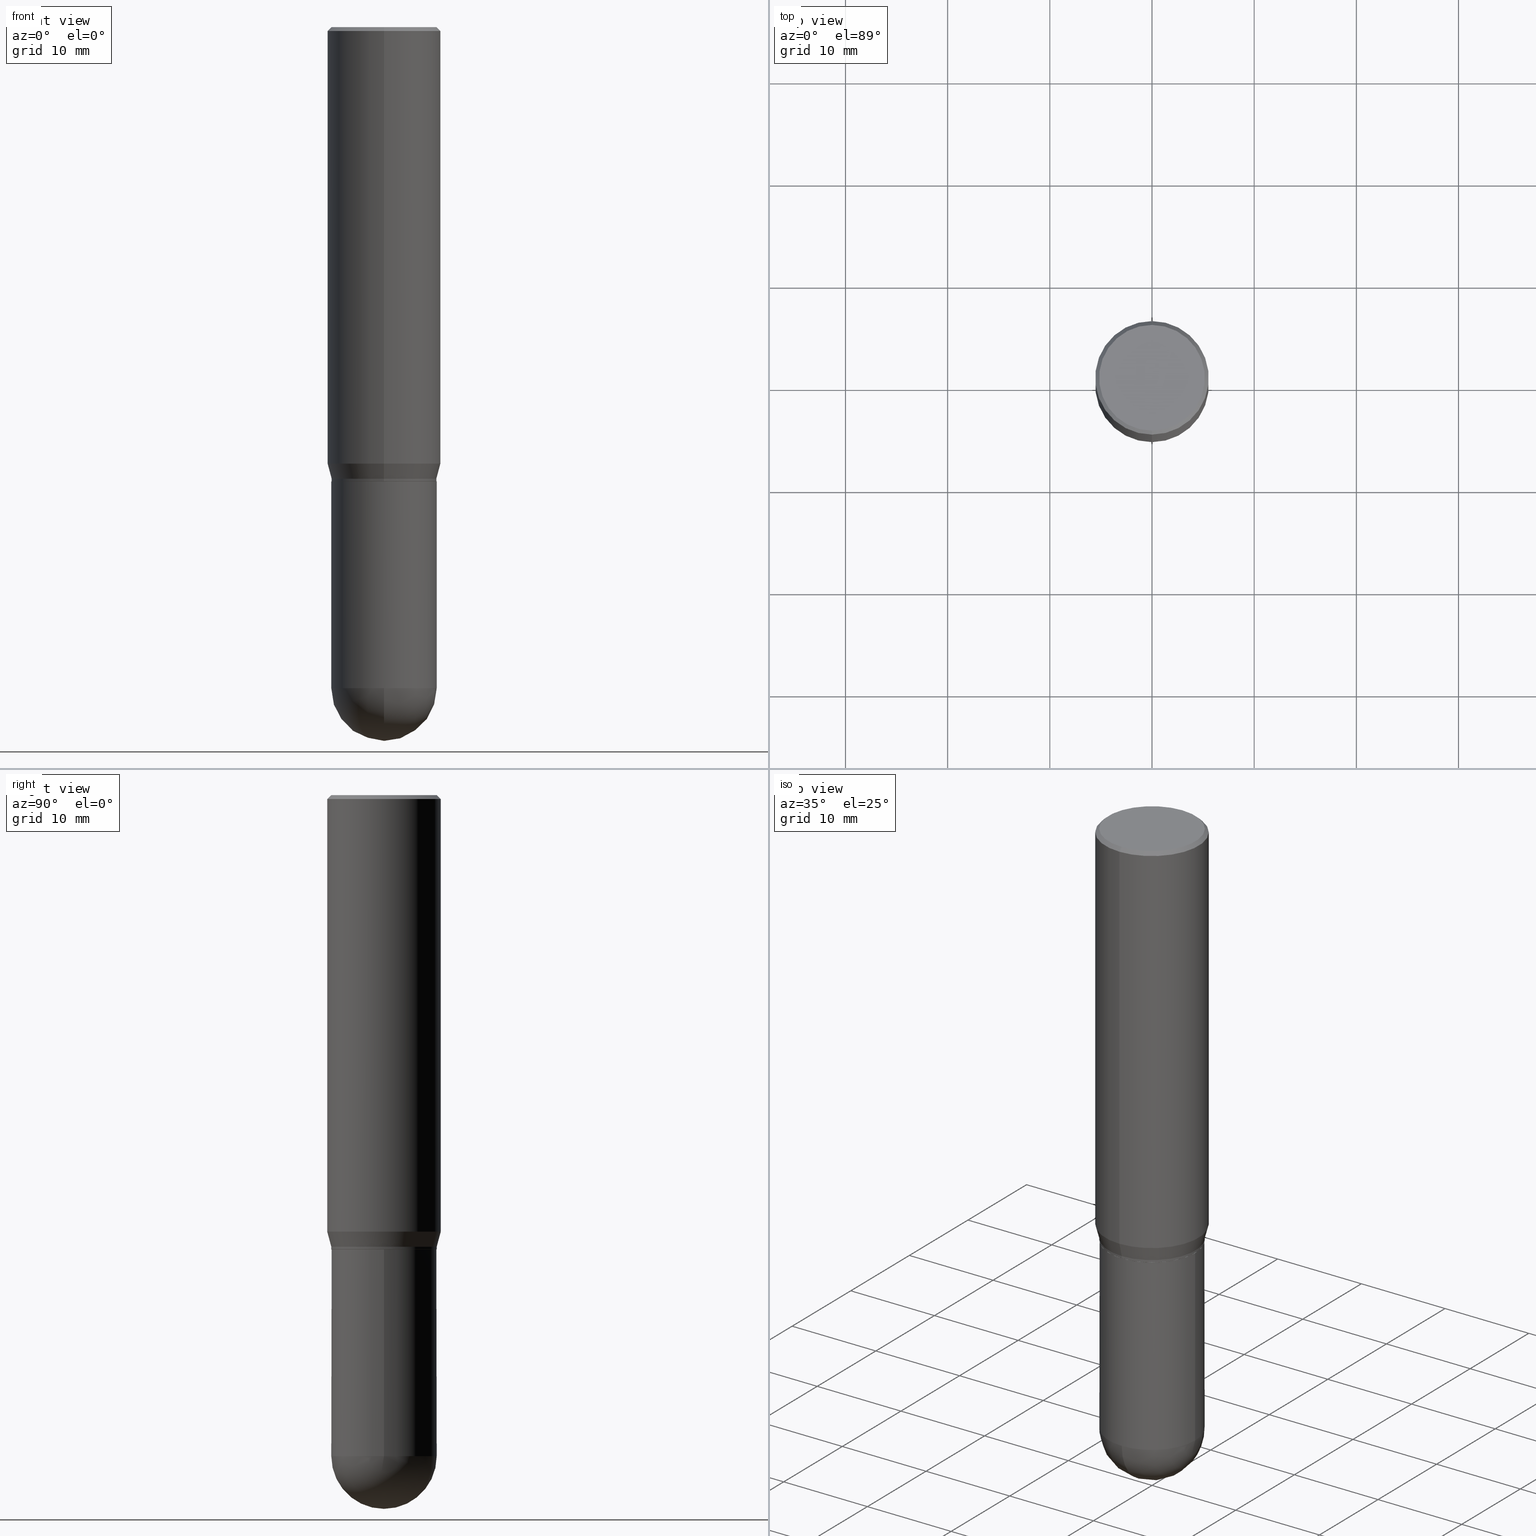
[diagram: canonical four-view strip — front | top / right | iso, engineering-drawing reading convention]
A machine part, canonical four-view strip (front | top / right | iso — engineering-drawing reading convention). The complete STEP part file that produces these views, byte-faithful:
ISO-10303-21;
HEADER;
FILE_DESCRIPTION (( 'STEP AP203' ),
    '1' );
FILE_NAME ('39552.STEP',
    '2024-03-08T12:54:17',
    ( '' ),
    ( '' ),
    'SwSTEP 2.0',
    'SolidWorks 2023',
    '' );
FILE_SCHEMA (( 'CONFIG_CONTROL_DESIGN' ));
ENDSEC;

DATA;
#1 = EDGE_LOOP ( 'NONE', ( #213, #378, #39, #416 ) ) ;
#2 = DIRECTION ( 'NONE',  ( 1.000000000000000000, -6.982962677686265922E-15, 4.883557194083112340E-29 ) ) ;
#3 = EDGE_LOOP ( 'NONE', ( #158, #72, #414, #426 ) ) ;
#4 = AXIS2_PLACEMENT_3D ( 'NONE', #265, #104, #502 ) ;
#5 = ORIENTED_EDGE ( 'NONE', *, *, #32, .T. ) ;
#6 = DIRECTION ( 'NONE',  ( -6.982962677686265922E-15, -1.000000000000000000, 4.045184590815789415E-15 ) ) ;
#7 = CARTESIAN_POINT ( 'NONE',  ( -1.527523085743870449E-15, -0.2187500000000000000, 7.637740546004402196E-16 ) ) ;
#8 = ORIENTED_EDGE ( 'NONE', *, *, #153, .F. ) ;
#9 = EDGE_CURVE ( 'NONE', #55, #154, #96, .T. ) ;
#10 = DIRECTION ( 'NONE',  ( 2.438088387897960049E-29, -3.491481338843145188E-15, -1.000000000000000000 ) ) ;
#11 = APPLICATION_PROTOCOL_DEFINITION ( 'international standard', 'config_control_design', 1994, #100 ) ;
#12 = VECTOR ( 'NONE', #291, 39.37007874015748143 ) ;
#13 = AXIS2_PLACEMENT_3D ( 'NONE', #53, #50, #367 ) ;
#14 = PRODUCT_DEFINITION_FORMATION_WITH_SPECIFIED_SOURCE ( 'ANY', '', #249, .NOT_KNOWN. ) ;
#15 = CALENDAR_DATE ( 2024, 8, 3 ) ;
#16 = MECHANICAL_CONTEXT ( 'NONE', #164, 'mechanical' ) ;
#17 = CARTESIAN_POINT ( 'NONE',  ( 6.228364502472924746E-29, -8.892453821899607499E-15, -2.546899999999999942 ) ) ;
#18 = AXIS2_PLACEMENT_3D ( 'NONE', #152, #46, #404 ) ;
#19 = PERSON_AND_ORGANIZATION ( #293, #227 ) ;
#20 = VERTEX_POINT ( 'NONE', #364 ) ;
#21 = DIRECTION ( 'NONE',  ( -2.445428866101404443E-29, 3.491538535316298316E-15, 1.000000000000000000 ) ) ;
#22 = VERTEX_POINT ( 'NONE', #142 ) ;
#23 = DIRECTION ( 'NONE',  ( -2.445468806185136597E-29, 3.491481338843145583E-15, 1.000000000000000000 ) ) ;
#24 = DIRECTION ( 'NONE',  ( 1.000000000000000000, -6.982962677686266711E-15, 4.876176775795935793E-29 ) ) ;
#25 = LINE ( 'NONE', #499, #253 ) ;
#26 = AXIS2_PLACEMENT_3D ( 'NONE', #274, #363, #358 ) ;
#27 = PRODUCT_RELATED_PRODUCT_CATEGORY ( 'detail', '', ( #249 ) ) ;
#28 = DIRECTION ( 'NONE',  ( 6.982962677686265133E-15, 1.000000000000000000, -3.492862791899308071E-15 ) ) ;
#29 = DIRECTION ( 'NONE',  ( -1.000000000000000000, 7.105427357601001070E-15, -4.926315508542082329E-29 ) ) ;
#30 = PLANE ( 'NONE',  #292 ) ;
#31 = VERTEX_POINT ( 'NONE', #327 ) ;
#32 = EDGE_CURVE ( 'NONE', #162, #347, #383, .T. ) ;
#33 = CARTESIAN_POINT ( 'NONE',  ( 6.716355003342508555E-29, -9.614009970063991023E-15, -2.750000000000000000 ) ) ;
#34 = CIRCLE ( 'NONE', #4, 0.2031000000000000583 ) ;
#35 = AXIS2_PLACEMENT_3D ( 'NONE', #508, #73, #235 ) ;
#36 = ORIENTED_EDGE ( 'NONE', *, *, #465, .T. ) ;
#37 = CARTESIAN_POINT ( 'NONE',  ( 1.443112296328806293E-15, 0.2030999999999939243, -1.749500000000000721 ) ) ;
#38 = DIRECTION ( 'NONE',  ( -2.445468806185136597E-29, 3.491481338843145583E-15, 1.000000000000000000 ) ) ;
#39 = ORIENTED_EDGE ( 'NONE', *, *, #199, .F. ) ;
#40 = FACE_OUTER_BOUND ( 'NONE', #78, .T. ) ;
#41 = EDGE_CURVE ( 'NONE', #31, #269, #481, .T. ) ;
#42 = CARTESIAN_POINT ( 'NONE',  ( 1.554312234475260177E-15, 0.2187499999999941436, -1.681593404861547958 ) ) ;
#43 =( NAMED_UNIT ( * ) PLANE_ANGLE_UNIT ( ) SI_UNIT ( $, .RADIAN. ) );
#44 = ADVANCED_FACE ( 'NONE', ( #450 ), #93, .T. ) ;
#45 = ORIENTED_EDGE ( 'NONE', *, *, #65, .T. ) ;
#46 = DIRECTION ( 'NONE',  ( -1.000000000000000000, 6.982962677686266711E-15, -4.883557194083112901E-29 ) ) ;
#47 = ORIENTED_EDGE ( 'NONE', *, *, #41, .T. ) ;
#48 = ORIENTED_EDGE ( 'NONE', *, *, #446, .F. ) ;
#49 = MANIFOLD_SOLID_BREP ( 'Body-Move/Copy2[2]', #214 ) ;
#50 = DIRECTION ( 'NONE',  ( 0.000000000000000000, 0.000000000000000000, 1.000000000000000000 ) ) ;
#51 = FACE_OUTER_BOUND ( 'NONE', #472, .T. ) ;
#52 = CONICAL_SURFACE ( 'NONE', #75, 0.2187500000000000000, 0.7853981633974485010 ) ;
#53 = CARTESIAN_POINT ( 'NONE',  ( 0.000000000000000000, 0.000000000000000000, 0.000000000000000000 ) ) ;
#54 = APPROVAL_STATUS ( 'not_yet_approved' ) ;
#55 = VERTEX_POINT ( 'NONE', #490 ) ;
#56 = PERSON_AND_ORGANIZATION ( #293, #227 ) ;
#57 = ORIENTED_EDGE ( 'NONE', *, *, #475, .T. ) ;
#58 = AXIS2_PLACEMENT_3D ( 'NONE', #503, #231, #222 ) ;
#59 = AXIS2_PLACEMENT_3D ( 'NONE', #430, #270, #232 ) ;
#60 = CARTESIAN_POINT ( 'NONE',  ( 4.279500515677457004E-29, -6.110192436803521757E-15, -1.750000000000000000 ) ) ;
#61 = CC_DESIGN_SECURITY_CLASSIFICATION ( #77, ( #14 ) ) ;
#62 = ORIENTED_EDGE ( 'NONE', *, *, #475, .F. ) ;
#63 = EDGE_CURVE ( 'NONE', #307, #347, #205, .T. ) ;
#64 = CYLINDRICAL_SURFACE ( 'NONE', #88, 0.2030999999999999472 ) ;
#65 = EDGE_CURVE ( 'NONE', #154, #20, #308, .T. ) ;
#66 = CARTESIAN_POINT ( 'NONE',  ( 4.278277801244407626E-29, -6.108446667535864278E-15, -1.749500000000000055 ) ) ;
#67 = CARTESIAN_POINT ( 'NONE',  ( 4.255046227016444789E-29, -6.075277051450358762E-15, -1.739999999999999991 ) ) ;
#68 = CLOSED_SHELL ( 'NONE', ( #44, #485, #130, #408, #79 ) ) ;
#69 = CIRCLE ( 'NONE', #360, 0.2030999999999999472 ) ;
#70 = LINE ( 'NONE', #99, #276 ) ;
#71 = CARTESIAN_POINT ( 'NONE',  ( 0.2031000000000000028, -1.418239719838080775E-15, 9.903515031641546145E-30 ) ) ;
#72 = ORIENTED_EDGE ( 'NONE', *, *, #234, .T. ) ;
#73 = DIRECTION ( 'NONE',  ( -2.445428866101404443E-29, 3.491538535316298316E-15, 1.000000000000000000 ) ) ;
#74 = DIRECTION ( 'NONE',  ( -1.000000000000000000, 6.982962677686266711E-15, -4.883557194083112901E-29 ) ) ;
#75 = AXIS2_PLACEMENT_3D ( 'NONE', #415, #224, #382 ) ;
#76 = AXIS2_PLACEMENT_3D ( 'NONE', #197, #2, #361 ) ;
#77 = SECURITY_CLASSIFICATION ( '', '', #486 ) ;
#78 = EDGE_LOOP ( 'NONE', ( #406, #284 ) ) ;
#79 = ADVANCED_FACE ( 'NONE', ( #306 ), #351, .T. ) ;
#80 = DIRECTION ( 'NONE',  ( -6.982962677686265133E-15, -1.000000000000000000, 3.491538535316298316E-15 ) ) ;
#81 = DIRECTION ( 'NONE',  ( -4.851104656540965064E-15, -0.7071067811865501263, -0.7071067811865449082 ) ) ;
#82 = DIRECTION ( 'NONE',  ( 6.982962677686266711E-15, 1.000000000000000000, -2.690150658458162309E-15 ) ) ;
#83 = ORIENTED_EDGE ( 'NONE', *, *, #392, .F. ) ;
#84 = EDGE_CURVE ( 'NONE', #510, #259, #462, .T. ) ;
#85 = FACE_OUTER_BOUND ( 'NONE', #238, .T. ) ;
#86 = ORIENTED_EDGE ( 'NONE', *, *, #183, .F. ) ;
#87 = ORIENTED_EDGE ( 'NONE', *, *, #63, .T. ) ;
#88 = AXIS2_PLACEMENT_3D ( 'NONE', #341, #459, #221 ) ;
#89 = LOCAL_TIME ( 7, 54, 17.00000000000000000, #373 ) ;
#90 = PERSON_AND_ORGANIZATION_ROLE ( 'design_supplier' ) ;
#91 = DATE_AND_TIME ( #15, #434 ) ;
#92 = CIRCLE ( 'NONE', #59, 0.2031000000000000028 ) ;
#93 = CYLINDRICAL_SURFACE ( 'NONE', #159, 0.2031000000000000028 ) ;
#94 = COORDINATED_UNIVERSAL_TIME_OFFSET ( 5, 0, .BEHIND. ) ;
#95 = ORIENTED_EDGE ( 'NONE', *, *, #294, .F. ) ;
#96 = LINE ( 'NONE', #338, #417 ) ;
#97 = ADVANCED_FACE ( 'NONE', ( #182 ), #346, .T. ) ;
#98 = AXIS2_PLACEMENT_3D ( 'NONE', #393, #151, #116 ) ;
#99 = CARTESIAN_POINT ( 'NONE',  ( -0.2031000000000000028, 1.443112296328763497E-15, -9.990357168307714203E-30 ) ) ;
#100 = APPLICATION_CONTEXT ( 'configuration controlled 3d designs of mechanical parts and assemblies' ) ;
#101 = ORIENTED_EDGE ( 'NONE', *, *, #386, .F. ) ;
#102 = CARTESIAN_POINT ( 'NONE',  ( 3.668143299152134304E-31, -5.237307802974486843E-17, -0.01500000000000011394 ) ) ;
#103 = DIRECTION ( 'NONE',  ( 1.000000000000000000, -6.982962677686269866E-15, 0.000000000000000000 ) ) ;
#104 = DIRECTION ( 'NONE',  ( -2.445468806185136597E-29, 3.491481338843145583E-15, 1.000000000000000000 ) ) ;
#105 = VECTOR ( 'NONE', #388, 39.37007874015748143 ) ;
#106 = EDGE_CURVE ( 'NONE', #320, #259, #457, .T. ) ;
#107 = CARTESIAN_POINT ( 'NONE',  ( 6.210996075139691695E-29, -8.917326398390289827E-15, -2.546899999999999942 ) ) ;
#108 = AXIS2_PLACEMENT_3D ( 'NONE', #67, #229, #385 ) ;
#109 = EDGE_LOOP ( 'NONE', ( #494, #190, #295, #86 ) ) ;
#110 = FACE_OUTER_BOUND ( 'NONE', #297, .T. ) ;
#111 = DIRECTION ( 'NONE',  ( -2.445428866101404443E-29, 3.491538535316298316E-15, 1.000000000000000000 ) ) ;
#112 = ORIENTED_EDGE ( 'NONE', *, *, #223, .F. ) ;
#113 = CARTESIAN_POINT ( 'NONE',  ( 1.441335939489405449E-15, 0.2025999999999938961, -1.750000000000000666 ) ) ;
#114 = DIRECTION ( 'NONE',  ( 1.000000000000000000, -6.982962677686262766E-15, 0.000000000000000000 ) ) ;
#115 = EDGE_CURVE ( 'NONE', #315, #456, #133, .T. ) ;
#116 = DIRECTION ( 'NONE',  ( -6.982962677686265922E-15, -1.000000000000000000, 4.045184590815789415E-15 ) ) ;
#117 = DIRECTION ( 'NONE',  ( -2.445428866101404443E-29, 3.491538535316298316E-15, 1.000000000000000000 ) ) ;
#118 = CIRCLE ( 'NONE', #286, 0.2037499999999999867 ) ;
#119 = ORIENTED_EDGE ( 'NONE', *, *, #115, .F. ) ;
#120 = CC_DESIGN_PERSON_AND_ORGANIZATION_ASSIGNMENT ( #129, #137, ( #14 ) ) ;
#121 = SPHERICAL_SURFACE ( 'NONE', #18, 0.2030999999999999472 ) ;
#122 = ORIENTED_EDGE ( 'NONE', *, *, #303, .F. ) ;
#123 = CARTESIAN_POINT ( 'NONE',  ( 4.279500515677457004E-29, -6.110192436803521757E-15, -1.750000000000000000 ) ) ;
#124 = ORIENTED_EDGE ( 'NONE', *, *, #9, .F. ) ;
#125 = CIRCLE ( 'NONE', #185, 0.2030999999999999472 ) ;
#126 = AXIS2_PLACEMENT_3D ( 'NONE', #512, #74, #82 ) ;
#127 = LINE ( 'NONE', #437, #368 ) ;
#128 = PERSON_AND_ORGANIZATION_ROLE ( 'design_owner' ) ;
#129 = PERSON_AND_ORGANIZATION ( #293, #227 ) ;
#130 = ADVANCED_FACE ( 'NONE', ( #471 ), #366, .F. ) ;
#131 = CALENDAR_DATE ( 2024, 8, 3 ) ;
#132 = CARTESIAN_POINT ( 'NONE',  ( -1.418239719838080381E-15, -0.2030999999999999472, 7.091314765227400575E-16 ) ) ;
#133 = CIRCLE ( 'NONE', #285, 0.2026000000000000023 ) ;
#134 = AXIS2_PLACEMENT_3D ( 'NONE', #156, #401, #163 ) ;
#135 = CC_DESIGN_PERSON_AND_ORGANIZATION_ASSIGNMENT ( #252, #128, ( #249 ) ) ;
#136 = APPROVAL_PERSON_ORGANIZATION ( #329, #250, #288 ) ;
#137 = PERSON_AND_ORGANIZATION_ROLE ( 'creator' ) ;
#138 = EDGE_LOOP ( 'NONE', ( #429, #362, #47, #48 ) ) ;
#139 = DATE_AND_TIME ( #258, #89 ) ;
#140 = VERTEX_POINT ( 'NONE', #277 ) ;
#141 = FACE_OUTER_BOUND ( 'NONE', #438, .T. ) ;
#142 = CARTESIAN_POINT ( 'NONE',  ( -0.2031000000000000028, -6.058160786108792588E-15, -1.750000000000000000 ) ) ;
#143 = CIRCLE ( 'NONE', #76, 0.2030999999999999472 ) ;
#144 = CC_DESIGN_APPROVAL ( #250, ( #405 ) ) ;
#145 = DIRECTION ( 'NONE',  ( -6.982962677686266711E-15, -1.000000000000000000, 4.035225987687243463E-15 ) ) ;
#146 = DIRECTION ( 'NONE',  ( -4.937700262164715281E-15, -0.7071067811865691111, 0.7071067811865257013 ) ) ;
#147 = CARTESIAN_POINT ( 'NONE',  ( -1.418239719838037782E-15, -0.2031000000000060257, -1.739999999999999103 ) ) ;
#148 = DIRECTION ( 'NONE',  ( -2.445468806185136597E-29, 3.491481338843145583E-15, 1.000000000000000000 ) ) ;
#149 = DIRECTION ( 'NONE',  ( -2.445428866101404443E-29, 3.491538535316297921E-15, 1.000000000000000000 ) ) ;
#150 = ORIENTED_EDGE ( 'NONE', *, *, #376, .F. ) ;
#151 = DIRECTION ( 'NONE',  ( -2.445428866101404443E-29, 3.491538535316298316E-15, 1.000000000000000000 ) ) ;
#152 = CARTESIAN_POINT ( 'NONE',  ( 6.210996075139691695E-29, -8.917326398390289827E-15, -2.546899999999999942 ) ) ;
#153 = EDGE_CURVE ( 'NONE', #140, #320, #127, .T. ) ;
#154 = VERTEX_POINT ( 'NONE', #42 ) ;
#155 = CARTESIAN_POINT ( 'NONE',  ( 0.2031000000000000028, -7.528332062813585446E-15, -1.750000000000000000 ) ) ;
#156 = CARTESIAN_POINT ( 'NONE',  ( 4.112217053294172949E-29, -5.871348173807832947E-15, -1.681593404861547070 ) ) ;
#157 = ADVANCED_FACE ( 'NONE', ( #51 ), #230, .T. ) ;
#158 = ORIENTED_EDGE ( 'NONE', *, *, #497, .T. ) ;
#159 = AXIS2_PLACEMENT_3D ( 'NONE', #171, #255, #331 ) ;
#160 = EDGE_LOOP ( 'NONE', ( #165, #5, #443, #272, #466 ) ) ;
#161 = DIRECTION ( 'NONE',  ( -2.445428866101404443E-29, 3.491538535316298316E-15, 1.000000000000000000 ) ) ;
#162 = VERTEX_POINT ( 'NONE', #345 ) ;
#163 = DIRECTION ( 'NONE',  ( -6.982962677686265133E-15, -1.000000000000000000, 3.746534391310989557E-15 ) ) ;
#164 = APPLICATION_CONTEXT ( 'configuration controlled 3d designs of mechanical parts and assemblies' ) ;
#165 = ORIENTED_EDGE ( 'NONE', *, *, #247, .F. ) ;
#166 = DIRECTION ( 'NONE',  ( -1.000000000000000000, 6.982962677686265922E-15, -4.876176775795935793E-29 ) ) ;
#167 = APPROVAL_ROLE ( '' ) ;
#168 = VECTOR ( 'NONE', #468, 39.37007874015748143 ) ;
#169 = EDGE_CURVE ( 'NONE', #31, #343, #422, .T. ) ;
#170 = APPROVAL_DATE_TIME ( #290, #271 ) ;
#171 = CARTESIAN_POINT ( 'NONE',  ( 0.000000000000000000, 0.000000000000000000, 0.000000000000000000 ) ) ;
#172 = AXIS2_PLACEMENT_3D ( 'NONE', #218, #23, #177 ) ;
#173 = DATE_AND_TIME ( #202, #207 ) ;
#174 = EDGE_LOOP ( 'NONE', ( #492, #374, #391, #353 ) ) ;
#175 = CARTESIAN_POINT ( 'NONE',  ( 0.000000000000000000, 0.000000000000000000, 0.000000000000000000 ) ) ;
#176 = VERTEX_POINT ( 'NONE', #461 ) ;
#177 = DIRECTION ( 'NONE',  ( 1.000000000000000000, -6.982962677686262766E-15, 0.000000000000000000 ) ) ;
#178 = VECTOR ( 'NONE', #239, 39.37007874015748143 ) ;
#179 = DIRECTION ( 'NONE',  ( -2.445428866101404162E-29, 3.491538535316297921E-15, 1.000000000000000000 ) ) ;
#180 = CARTESIAN_POINT ( 'NONE',  ( -1.414748238499194972E-15, -0.2026000000000061363, -1.749999999999999112 ) ) ;
#181 = DIRECTION ( 'NONE',  ( -2.445428866101404443E-29, 3.491538535316298316E-15, 1.000000000000000000 ) ) ;
#182 = FACE_OUTER_BOUND ( 'NONE', #3, .T. ) ;
#183 = EDGE_CURVE ( 'NONE', #347, #176, #488, .T. ) ;
#184 = CARTESIAN_POINT ( 'NONE',  ( -1.527523085743870054E-15, -0.2187500000000000555, -0.01499999999999934892 ) ) ;
#185 = AXIS2_PLACEMENT_3D ( 'NONE', #336, #498, #339 ) ;
#186 = DIRECTION ( 'NONE',  ( -7.105427357601001070E-15, -1.000000000000000000, 0.000000000000000000 ) ) ;
#187 = AXIS2_PLACEMENT_3D ( 'NONE', #354, #427, #194 ) ;
#188 = DIRECTION ( 'NONE',  ( -6.982962677686265133E-15, -1.000000000000000000, 3.491538535316298316E-15 ) ) ;
#189 = APPROVAL_PERSON_ORGANIZATION ( #370, #271, #167 ) ;
#190 = ORIENTED_EDGE ( 'NONE', *, *, #453, .T. ) ;
#191 = CARTESIAN_POINT ( 'NONE',  ( 2.741164584547628974E-45, -3.913784576302397328E-31, -1.120934091580303315E-16 ) ) ;
#192 = LINE ( 'NONE', #439, #349 ) ;
#193 = ORIENTED_EDGE ( 'NONE', *, *, #247, .T. ) ;
#194 = DIRECTION ( 'NONE',  ( 6.982962677686265922E-15, 1.000000000000000000, -3.491538535316297921E-15 ) ) ;
#195 = DIRECTION ( 'NONE',  ( -2.445428866101404443E-29, 3.491538535316298316E-15, 1.000000000000000000 ) ) ;
#196 = AXIS2_PLACEMENT_3D ( 'NONE', #175, #181, #387 ) ;
#197 = CARTESIAN_POINT ( 'NONE',  ( 6.210996075139691695E-29, -8.917326398390289827E-15, -2.546899999999999942 ) ) ;
#198 = AXIS2_PLACEMENT_3D ( 'NONE', #474, #195, #188 ) ;
#199 = EDGE_CURVE ( 'NONE', #269, #55, #125, .T. ) ;
#200 = EDGE_LOOP ( 'NONE', ( #478, #119 ) ) ;
#201 = ORIENTED_EDGE ( 'NONE', *, *, #209, .F. ) ;
#202 = CALENDAR_DATE ( 2024, 8, 3 ) ;
#203 = ADVANCED_FACE ( 'NONE', ( #110 ), #309, .T. ) ;
#204 = COORDINATED_UNIVERSAL_TIME_OFFSET ( 5, 0, .BEHIND. ) ;
#205 = CIRCLE ( 'NONE', #504, 0.2030999999999999472 ) ;
#206 = CIRCLE ( 'NONE', #433, 0.2031000000000000583 ) ;
#207 = LOCAL_TIME ( 7, 54, 17.00000000000000000, #289 ) ;
#208 = DATE_AND_TIME ( #413, #435 ) ;
#209 = EDGE_CURVE ( 'NONE', #335, #162, #34, .T. ) ;
#210 = APPROVAL_STATUS ( 'not_yet_approved' ) ;
#211 = EDGE_LOOP ( 'NONE', ( #122, #240, #322, #95 ) ) ;
#212 = DATE_TIME_ROLE ( 'classification_date' ) ;
#213 = ORIENTED_EDGE ( 'NONE', *, *, #169, .T. ) ;
#214 = CLOSED_SHELL ( 'NONE', ( #257, #479, #280, #97, #203, #300, #157, #215, #372, #246, #337, #379 ) ) ;
#215 = ADVANCED_FACE ( 'NONE', ( #141 ), #52, .T. ) ;
#216 = CIRCLE ( 'NONE', #505, 0.2031000000000000028 ) ;
#217 = APPROVAL_PERSON_ORGANIZATION ( #489, #487, #296 ) ;
#218 = CARTESIAN_POINT ( 'NONE',  ( 6.228364502472924746E-29, -8.892453821899607499E-15, -2.546899999999999942 ) ) ;
#219 = EDGE_LOOP ( 'NONE', ( #389, #193, #150, #396, #452 ) ) ;
#220 = MANIFOLD_SOLID_BREP ( 'Body-Move/Copy2[1]', #68 ) ;
#221 = DIRECTION ( 'NONE',  ( -6.982962677686266711E-15, -1.000000000000000000, 3.491538535316298710E-15 ) ) ;
#222 = DIRECTION ( 'NONE',  ( -6.982962677686265133E-15, -1.000000000000000000, 3.746534391310989557E-15 ) ) ;
#223 = EDGE_CURVE ( 'NONE', #456, #31, #305, .T. ) ;
#224 = DIRECTION ( 'NONE',  ( 2.445428866101404443E-29, -3.491538535316298316E-15, -1.000000000000000000 ) ) ;
#225 = EDGE_CURVE ( 'NONE', #343, #55, #25, .T. ) ;
#226 = AXIS2_PLACEMENT_3D ( 'NONE', #441, #317, #328 ) ;
#227 = ORGANIZATION ( 'UNSPECIFIED', 'UNSPECIFIED', '' ) ;
#228 = LOCAL_TIME ( 7, 54, 17.00000000000000000, #484 ) ;
#229 = DIRECTION ( 'NONE',  ( -2.445428866101404443E-29, 3.491538535316298316E-15, 1.000000000000000000 ) ) ;
#230 = CYLINDRICAL_SURFACE ( 'NONE', #196, 0.2187500000000000000 ) ;
#231 = DIRECTION ( 'NONE',  ( -2.445428866101404443E-29, 3.491538535316298316E-15, 1.000000000000000000 ) ) ;
#232 = DIRECTION ( 'NONE',  ( 1.000000000000000000, -6.982962677686269866E-15, 0.000000000000000000 ) ) ;
#233 = ORIENTED_EDGE ( 'NONE', *, *, #199, .T. ) ;
#234 = EDGE_CURVE ( 'NONE', #154, #259, #298, .T. ) ;
#235 = DIRECTION ( 'NONE',  ( -6.982962677686266711E-15, -1.000000000000000000, 3.491538535316298710E-15 ) ) ;
#236 = AXIS2_PLACEMENT_3D ( 'NONE', #17, #299, #419 ) ;
#237 = DIRECTION ( 'NONE',  ( -1.807323732225330928E-15, -0.2588190451025182970, 0.9659258262890689783 ) ) ;
#238 = EDGE_LOOP ( 'NONE', ( #440, #412, #506, #112 ) ) ;
#239 = DIRECTION ( 'NONE',  ( -2.445468806185136877E-29, 3.491481338843145188E-15, 1.000000000000000000 ) ) ;
#240 = ORIENTED_EDGE ( 'NONE', *, *, #115, .T. ) ;
#241 = FACE_OUTER_BOUND ( 'NONE', #312, .T. ) ;
#242 = EDGE_LOOP ( 'NONE', ( #399, #262 ) ) ;
#243 = CIRCLE ( 'NONE', #384, 0.2187500000000000000 ) ;
#244 = ORIENTED_EDGE ( 'NONE', *, *, #234, .F. ) ;
#245 = DIRECTION ( 'NONE',  ( -2.445428866101404443E-29, 3.491538535316298316E-15, 1.000000000000000000 ) ) ;
#246 = ADVANCED_FACE ( 'NONE', ( #377 ), #30, .F. ) ;
#247 = EDGE_CURVE ( 'NONE', #162, #22, #70, .T. ) ;
#248 = PERSON_AND_ORGANIZATION_ROLE ( 'classification_officer' ) ;
#249 = PRODUCT ( '39552', '39552', '', ( #16 ) ) ;
#250 = APPROVAL ( #54, 'UNSPECIFIED' ) ;
#251 = UNCERTAINTY_MEASURE_WITH_UNIT (LENGTH_MEASURE( 1.000000000000000082E-05 ), #278, 'distance_accuracy_value', 'NONE');
#252 = PERSON_AND_ORGANIZATION ( #293, #227 ) ;
#253 = VECTOR ( 'NONE', #179, 39.37007874015748143 ) ;
#254 = CC_DESIGN_APPROVAL ( #271, ( #14 ) ) ;
#255 = DIRECTION ( 'NONE',  ( -2.445468806185136597E-29, 3.491481338843145583E-15, 1.000000000000000000 ) ) ;
#256 = DIRECTION ( 'NONE',  ( 1.839019923739601104E-15, 0.2588190451025250693, 0.9659258262890670910 ) ) ;
#257 = ADVANCED_FACE ( 'NONE', ( #342 ), #64, .T. ) ;
#258 = CALENDAR_DATE ( 2024, 8, 3 ) ;
#259 = VERTEX_POINT ( 'NONE', #380 ) ;
#260 = CIRCLE ( 'NONE', #198, 0.2037499999999999867 ) ;
#261 = DIRECTION ( 'NONE',  ( -2.445468806185136877E-29, 3.491481338843145188E-15, 1.000000000000000000 ) ) ;
#262 = ORIENTED_EDGE ( 'NONE', *, *, #287, .T. ) ;
#263 = DIRECTION ( 'NONE',  ( 2.445428866101404443E-29, -3.491538535316298316E-15, -1.000000000000000000 ) ) ;
#264 = CC_DESIGN_PERSON_AND_ORGANIZATION_ASSIGNMENT ( #19, #491, ( #405 ) ) ;
#265 = CARTESIAN_POINT ( 'NONE',  ( 6.228364502472924746E-29, -8.892453821899607499E-15, -2.546899999999999942 ) ) ;
#266 = CONICAL_SURFACE ( 'NONE', #449, 0.2026000000000000023, 0.7853981633974824739 ) ;
#267 = CARTESIAN_POINT ( 'NONE',  ( 4.279570410823988484E-29, -6.110092342975504671E-15, -1.750000000000000000 ) ) ;
#268 = CARTESIAN_POINT ( 'NONE',  ( 1.527523085743871040E-15, 0.2187499999999999167, -0.01500000000000087721 ) ) ;
#269 = VERTEX_POINT ( 'NONE', #147 ) ;
#270 = DIRECTION ( 'NONE',  ( -2.445468806185136597E-29, 3.491481338843145583E-15, 1.000000000000000000 ) ) ;
#271 = APPROVAL ( #210, 'UNSPECIFIED' ) ;
#272 = ORIENTED_EDGE ( 'NONE', *, *, #333, .T. ) ;
#273 = CARTESIAN_POINT ( 'NONE',  ( -1.443112296328700980E-15, -0.2031000000000088845, -2.546899999999999498 ) ) ;
#274 = CARTESIAN_POINT ( 'NONE',  ( 4.279500515677457004E-29, -6.110192436803521757E-15, -1.750000000000000000 ) ) ;
#275 = CARTESIAN_POINT ( 'NONE',  ( 1.439559582650005591E-15, 0.2025999999999938961, -1.750000000000000666 ) ) ;
#276 = VECTOR ( 'NONE', #261, 39.37007874015748143 ) ;
#277 = CARTESIAN_POINT ( 'NONE',  ( -1.449280202029235538E-15, -0.2037499999999999867, 5.993075674126653216E-16 ) ) ;
#278 =( CONVERSION_BASED_UNIT ( 'INCH', #442 ) LENGTH_UNIT ( ) NAMED_UNIT ( #454 ) );
#279 = ORIENTED_EDGE ( 'NONE', *, *, #9, .T. ) ;
#280 = ADVANCED_FACE ( 'NONE', ( #495 ), #444, .T. ) ;
#281 = CARTESIAN_POINT ( 'NONE',  ( 6.228364502472924746E-29, -8.892453821899607499E-15, -2.546899999999999942 ) ) ;
#282 = ORIENTED_EDGE ( 'NONE', *, *, #65, .F. ) ;
#283 = FACE_OUTER_BOUND ( 'NONE', #109, .T. ) ;
#284 = ORIENTED_EDGE ( 'NONE', *, *, #319, .T. ) ;
#285 = AXIS2_PLACEMENT_3D ( 'NONE', #325, #117, #6 ) ;
#286 = AXIS2_PLACEMENT_3D ( 'NONE', #191, #390, #80 ) ;
#287 = EDGE_CURVE ( 'NONE', #22, #324, #216, .T. ) ;
#288 = APPROVAL_ROLE ( '' ) ;
#289 = COORDINATED_UNIVERSAL_TIME_OFFSET ( 5, 0, .BEHIND. ) ;
#290 = DATE_AND_TIME ( #131, #228 ) ;
#291 = DIRECTION ( 'NONE',  ( -2.445428866101404162E-29, 3.491538535316297921E-15, 1.000000000000000000 ) ) ;
#292 = AXIS2_PLACEMENT_3D ( 'NONE', #60, #149, #310 ) ;
#293 = PERSON ( 'UNSPECIFIED', 'UNSPECIFIED', 'UNSPECIFIED', ('UNSPECIFIED'), ('UNSPECIFIED'), ('UNSPECIFIED') ) ;
#294 = EDGE_CURVE ( 'NONE', #343, #31, #496, .T. ) ;
#295 = ORIENTED_EDGE ( 'NONE', *, *, #425, .F. ) ;
#296 = APPROVAL_ROLE ( '' ) ;
#297 = EDGE_LOOP ( 'NONE', ( #233, #279, #375, #62 ) ) ;
#298 = LINE ( 'NONE', #455, #330 ) ;
#299 = DIRECTION ( 'NONE',  ( -2.445468806185136597E-29, 3.491481338843145583E-15, 1.000000000000000000 ) ) ;
#300 = ADVANCED_FACE ( 'NONE', ( #421 ), #483, .T. ) ;
#301 = CIRCLE ( 'NONE', #134, 0.2187500000000000000 ) ;
#302 = DIRECTION ( 'NONE',  ( -6.982962677686266711E-15, -1.000000000000000000, 4.035225987687243463E-15 ) ) ;
#303 = EDGE_CURVE ( 'NONE', #315, #343, #467, .T. ) ;
#304 = DIRECTION ( 'NONE',  ( -2.445428866101404443E-29, 3.491538535316298316E-15, 1.000000000000000000 ) ) ;
#305 = LINE ( 'NONE', #180, #332 ) ;
#306 = FACE_OUTER_BOUND ( 'NONE', #160, .T. ) ;
#307 = VERTEX_POINT ( 'NONE', #33 ) ;
#308 = CIRCLE ( 'NONE', #58, 0.2187500000000000000 ) ;
#309 = CONICAL_SURFACE ( 'NONE', #463, 0.2030999999999999472, 0.2617993877991502960 ) ;
#310 = DIRECTION ( 'NONE',  ( -6.982962677686265922E-15, -1.000000000000000000, 3.491538535316297921E-15 ) ) ;
#311 = CARTESIAN_POINT ( 'NONE',  ( 0.000000000000000000, 0.000000000000000000, 0.000000000000000000 ) ) ;
#312 = EDGE_LOOP ( 'NONE', ( #501, #87, #359, #201 ) ) ;
#313 = FACE_OUTER_BOUND ( 'NONE', #138, .T. ) ;
#314 = DIRECTION ( 'NONE',  ( -6.982962677686265133E-15, -1.000000000000000000, 3.492862791899308071E-15 ) ) ;
#315 = VERTEX_POINT ( 'NONE', #113 ) ;
#316 = DIRECTION ( 'NONE',  ( 5.024295867788231995E-15, 0.7071067811865739960, 0.7071067811865208164 ) ) ;
#317 = DIRECTION ( 'NONE',  ( -2.445428866101404443E-29, 3.491538535316298316E-15, 1.000000000000000000 ) ) ;
#318 = CARTESIAN_POINT ( 'NONE',  ( 1.475150865661223764E-15, 0.2037499999999999867, -8.234943857287259354E-16 ) ) ;
#319 = EDGE_CURVE ( 'NONE', #140, #510, #118, .T. ) ;
#320 = VERTEX_POINT ( 'NONE', #184 ) ;
#321 = CARTESIAN_POINT ( 'NONE',  ( -1.414748238499194972E-15, -0.2026000000000061363, -1.749999999999999112 ) ) ;
#322 = ORIENTED_EDGE ( 'NONE', *, *, #223, .T. ) ;
#323 = SPHERICAL_SURFACE ( 'NONE', #126, 0.2030999999999999472 ) ;
#324 = VERTEX_POINT ( 'NONE', #155 ) ;
#325 = CARTESIAN_POINT ( 'NONE',  ( 4.279500515677457004E-29, -6.110192436803521757E-15, -1.750000000000000000 ) ) ;
#326 = DIRECTION ( 'NONE',  ( -2.445428866101404443E-29, 3.491538535316298316E-15, 1.000000000000000000 ) ) ;
#327 = CARTESIAN_POINT ( 'NONE',  ( -1.418239719838036796E-15, -0.2031000000000059424, -1.749499999999999167 ) ) ;
#328 = DIRECTION ( 'NONE',  ( -6.982962677686265133E-15, -1.000000000000000000, 3.492862791899308071E-15 ) ) ;
#329 = PERSON_AND_ORGANIZATION ( #293, #227 ) ;
#330 = VECTOR ( 'NONE', #424, 39.37007874015748143 ) ;
#331 = DIRECTION ( 'NONE',  ( 1.000000000000000000, -6.982962677686266711E-15, 4.876176775795935793E-29 ) ) ;
#332 = VECTOR ( 'NONE', #146, 39.37007874015748854 ) ;
#333 = EDGE_CURVE ( 'NONE', #176, #324, #470, .T. ) ;
#334 = APPLICATION_PROTOCOL_DEFINITION ( 'international standard', 'config_control_design', 1994, #164 ) ;
#335 = VERTEX_POINT ( 'NONE', #357 ) ;
#336 = CARTESIAN_POINT ( 'NONE',  ( 4.255046227016444789E-29, -6.075277051450358762E-15, -1.739999999999999991 ) ) ;
#337 = ADVANCED_FACE ( 'NONE', ( #397 ), #409, .T. ) ;
#338 = CARTESIAN_POINT ( 'NONE',  ( 1.443112296328805307E-15, 0.2030999999999938688, -1.740000000000000879 ) ) ;
#339 = DIRECTION ( 'NONE',  ( -6.982962677686266711E-15, -1.000000000000000000, 4.035225987687243463E-15 ) ) ;
#340 = VECTOR ( 'NONE', #316, 39.37007874015748854 ) ;
#341 = CARTESIAN_POINT ( 'NONE',  ( 0.000000000000000000, 0.000000000000000000, 0.000000000000000000 ) ) ;
#342 = FACE_OUTER_BOUND ( 'NONE', #1, .T. ) ;
#343 = VERTEX_POINT ( 'NONE', #37 ) ;
#344 = CC_DESIGN_PERSON_AND_ORGANIZATION_ASSIGNMENT ( #445, #90, ( #14 ) ) ;
#345 = CARTESIAN_POINT ( 'NONE',  ( -0.2031000000000000583, -6.058160786108791010E-15, -2.546899999999999942 ) ) ;
#346 = CYLINDRICAL_SURFACE ( 'NONE', #402, 0.2187500000000000000 ) ;
#347 = VERTEX_POINT ( 'NONE', #273 ) ;
#348 = AXIS2_PLACEMENT_3D ( 'NONE', #394, #10, #166 ) ;
#349 = VECTOR ( 'NONE', #237, 39.37007874015748143 ) ;
#350 = CYLINDRICAL_SURFACE ( 'NONE', #35, 0.2030999999999999472 ) ;
#351 = CYLINDRICAL_SURFACE ( 'NONE', #482, 0.2031000000000000028 ) ;
#352 = DIRECTION ( 'NONE',  ( -6.982962677686266711E-15, -1.000000000000000000, 4.035225987687243463E-15 ) ) ;
#353 = ORIENTED_EDGE ( 'NONE', *, *, #84, .F. ) ;
#354 = CARTESIAN_POINT ( 'NONE',  ( 1.422778645578576487E-15, 0.2037499999999999867, -7.674476811497108312E-16 ) ) ;
#355 = DIRECTION ( 'NONE',  ( -6.982962677686265922E-15, -1.000000000000000000, 4.045184590815789415E-15 ) ) ;
#356 = ORIENTED_EDGE ( 'NONE', *, *, #386, .T. ) ;
#357 = CARTESIAN_POINT ( 'NONE',  ( 1.418239719838142898E-15, 0.2030999999999910932, -2.546900000000000830 ) ) ;
#358 = DIRECTION ( 'NONE',  ( -6.982962677686265922E-15, -1.000000000000000000, 4.045184590815789415E-15 ) ) ;
#359 = ORIENTED_EDGE ( 'NONE', *, *, #32, .F. ) ;
#360 = AXIS2_PLACEMENT_3D ( 'NONE', #509, #326, #352 ) ;
#361 = DIRECTION ( 'NONE',  ( 6.982962677686266711E-15, 1.000000000000000000, 0.000000000000000000 ) ) ;
#362 = ORIENTED_EDGE ( 'NONE', *, *, #294, .T. ) ;
#363 = DIRECTION ( 'NONE',  ( -2.445428866101404443E-29, 3.491538535316298316E-15, 1.000000000000000000 ) ) ;
#364 = CARTESIAN_POINT ( 'NONE',  ( -1.527523085743829428E-15, -0.2187500000000058287, -1.681593404861546404 ) ) ;
#365 = CC_DESIGN_DATE_AND_TIME_ASSIGNMENT ( #208, #411, ( #405 ) ) ;
#366 = PLANE ( 'NONE',  #348 ) ;
#367 = DIRECTION ( 'NONE',  ( 1.000000000000000000, 0.000000000000000000, 0.000000000000000000 ) ) ;
#368 = VECTOR ( 'NONE', #81, 39.37007874015748143 ) ;
#369 = AXIS2_PLACEMENT_3D ( 'NONE', #66, #304, #460 ) ;
#370 = PERSON_AND_ORGANIZATION ( #293, #227 ) ;
#371 = APPROVAL_DATE_TIME ( #91, #487 ) ;
#372 = ADVANCED_FACE ( 'NONE', ( #40 ), #436, .F. ) ;
#373 = COORDINATED_UNIVERSAL_TIME_OFFSET ( 5, 0, .BEHIND. ) ;
#374 = ORIENTED_EDGE ( 'NONE', *, *, #153, .T. ) ;
#375 = ORIENTED_EDGE ( 'NONE', *, *, #497, .F. ) ;
#376 = EDGE_CURVE ( 'NONE', #324, #22, #92, .T. ) ;
#377 = FACE_OUTER_BOUND ( 'NONE', #200, .T. ) ;
#378 = ORIENTED_EDGE ( 'NONE', *, *, #225, .T. ) ;
#379 = ADVANCED_FACE ( 'NONE', ( #313 ), #350, .T. ) ;
#380 = CARTESIAN_POINT ( 'NONE',  ( 1.554312234475260375E-15, 0.2187499999999999167, -0.01500000000000087721 ) ) ;
#381 = CARTESIAN_POINT ( 'NONE',  ( 0.000000000000000000, 0.000000000000000000, 0.000000000000000000 ) ) ;
#382 = DIRECTION ( 'NONE',  ( 6.982962677686265133E-15, 1.000000000000000000, -3.492862791899308071E-15 ) ) ;
#383 = CIRCLE ( 'NONE', #236, 0.2031000000000000583 ) ;
#384 = AXIS2_PLACEMENT_3D ( 'NONE', #511, #245, #314 ) ;
#385 = DIRECTION ( 'NONE',  ( -6.982962677686266711E-15, -1.000000000000000000, 4.035225987687243463E-15 ) ) ;
#386 = EDGE_CURVE ( 'NONE', #259, #320, #243, .T. ) ;
#387 = DIRECTION ( 'NONE',  ( -6.982962677686265133E-15, -1.000000000000000000, 3.491538535316298316E-15 ) ) ;
#388 = DIRECTION ( 'NONE',  ( 4.937700262164548831E-15, 0.7071067811865452413, -0.7071067811865497932 ) ) ;
#389 = ORIENTED_EDGE ( 'NONE', *, *, #209, .T. ) ;
#390 = DIRECTION ( 'NONE',  ( -2.445428866101404443E-29, 3.491538535316298316E-15, 1.000000000000000000 ) ) ;
#391 = ORIENTED_EDGE ( 'NONE', *, *, #106, .T. ) ;
#392 = EDGE_CURVE ( 'NONE', #510, #140, #260, .T. ) ;
#393 = CARTESIAN_POINT ( 'NONE',  ( 4.279500515677457004E-29, -6.110192436803521757E-15, -1.750000000000000000 ) ) ;
#394 = CARTESIAN_POINT ( 'NONE',  ( 1.418239719838123571E-15, 0.2030999999999938965, -1.750000000000000666 ) ) ;
#395 = LINE ( 'NONE', #7, #168 ) ;
#396 = ORIENTED_EDGE ( 'NONE', *, *, #333, .F. ) ;
#397 = FACE_OUTER_BOUND ( 'NONE', #211, .T. ) ;
#398 = CC_DESIGN_DATE_AND_TIME_ASSIGNMENT ( #139, #212, ( #77 ) ) ;
#399 = ORIENTED_EDGE ( 'NONE', *, *, #376, .T. ) ;
#400 = DIRECTION ( 'NONE',  ( -6.982962677686265133E-15, -1.000000000000000000, 3.491538535316298316E-15 ) ) ;
#401 = DIRECTION ( 'NONE',  ( -2.445428866101404443E-29, 3.491538535316298316E-15, 1.000000000000000000 ) ) ;
#402 = AXIS2_PLACEMENT_3D ( 'NONE', #311, #111, #400 ) ;
#403 = AXIS2_PLACEMENT_3D ( 'NONE', #102, #263, #28 ) ;
#404 = DIRECTION ( 'NONE',  ( 6.982962677686266711E-15, 1.000000000000000000, -2.690150658458162309E-15 ) ) ;
#405 = PRODUCT_DEFINITION ( 'UNKNOWN', '', #14, #476 ) ;
#406 = ORIENTED_EDGE ( 'NONE', *, *, #392, .T. ) ;
#407 = APPROVAL_STATUS ( 'not_yet_approved' ) ;
#408 = ADVANCED_FACE ( 'NONE', ( #283 ), #121, .T. ) ;
#409 = CONICAL_SURFACE ( 'NONE', #98, 0.2026000000000000023, 0.7853981633974824739 ) ;
#410 = SHAPE_DEFINITION_REPRESENTATION ( #507, #500 ) ;
#411 = DATE_TIME_ROLE ( 'creation_date' ) ;
#412 = ORIENTED_EDGE ( 'NONE', *, *, #303, .T. ) ;
#413 = CALENDAR_DATE ( 2024, 8, 3 ) ;
#414 = ORIENTED_EDGE ( 'NONE', *, *, #106, .F. ) ;
#415 = CARTESIAN_POINT ( 'NONE',  ( 3.668143299152134304E-31, -5.237307802974486843E-17, -0.01500000000000011394 ) ) ;
#416 = ORIENTED_EDGE ( 'NONE', *, *, #41, .F. ) ;
#417 = VECTOR ( 'NONE', #256, 39.37007874015748143 ) ;
#418 = CARTESIAN_POINT ( 'NONE',  ( 4.255046227016444789E-29, -6.075277051450358762E-15, -1.739999999999999991 ) ) ;
#419 = DIRECTION ( 'NONE',  ( 1.000000000000000000, -6.982962677686262766E-15, 0.000000000000000000 ) ) ;
#420 = DIRECTION ( 'NONE',  ( -2.445468806185136597E-29, 3.491481338843145583E-15, 1.000000000000000000 ) ) ;
#421 = FACE_OUTER_BOUND ( 'NONE', #469, .T. ) ;
#422 = CIRCLE ( 'NONE', #431, 0.2030999999999999472 ) ;
#423 = CC_DESIGN_APPROVAL ( #487, ( #77 ) ) ;
#424 = DIRECTION ( 'NONE',  ( -2.445428866101404162E-29, 3.491538535316297921E-15, 1.000000000000000000 ) ) ;
#425 = EDGE_CURVE ( 'NONE', #176, #335, #206, .T. ) ;
#426 = ORIENTED_EDGE ( 'NONE', *, *, #465, .F. ) ;
#427 = DIRECTION ( 'NONE',  ( 2.445428866101404443E-29, -3.491538535316297921E-15, -1.000000000000000000 ) ) ;
#428 = EDGE_CURVE ( 'NONE', #456, #315, #473, .T. ) ;
#429 = ORIENTED_EDGE ( 'NONE', *, *, #225, .F. ) ;
#430 = CARTESIAN_POINT ( 'NONE',  ( 4.279570410823988484E-29, -6.110092342975504671E-15, -1.750000000000000000 ) ) ;
#431 = AXIS2_PLACEMENT_3D ( 'NONE', #464, #21, #145 ) ;
#432 = ORIENTED_EDGE ( 'NONE', *, *, #84, .T. ) ;
#433 = AXIS2_PLACEMENT_3D ( 'NONE', #281, #38, #114 ) ;
#434 = LOCAL_TIME ( 7, 54, 17.00000000000000000, #204 ) ;
#435 = LOCAL_TIME ( 7, 54, 17.00000000000000000, #94 ) ;
#436 = PLANE ( 'NONE',  #187 ) ;
#437 = CARTESIAN_POINT ( 'NONE',  ( -1.500733937012521740E-15, -0.2187500000000000555, -0.01499999999999934892 ) ) ;
#438 = EDGE_LOOP ( 'NONE', ( #8, #83, #432, #356 ) ) ;
#439 = CARTESIAN_POINT ( 'NONE',  ( -1.418239719838037782E-15, -0.2031000000000060257, -1.739999999999999103 ) ) ;
#440 = ORIENTED_EDGE ( 'NONE', *, *, #428, .T. ) ;
#441 = CARTESIAN_POINT ( 'NONE',  ( 3.668143299152134304E-31, -5.237307802974486843E-17, -0.01500000000000011394 ) ) ;
#442 = LENGTH_MEASURE_WITH_UNIT ( LENGTH_MEASURE( 0.02539999999999999897 ), #477 );
#443 = ORIENTED_EDGE ( 'NONE', *, *, #183, .T. ) ;
#444 = CONICAL_SURFACE ( 'NONE', #403, 0.2187500000000000000, 0.7853981633974485010 ) ;
#445 = PERSON_AND_ORGANIZATION ( #293, #227 ) ;
#446 = EDGE_CURVE ( 'NONE', #55, #269, #69, .T. ) ;
#447 = APPROVAL_DATE_TIME ( #173, #250 ) ;
#448 = CC_DESIGN_PERSON_AND_ORGANIZATION_ASSIGNMENT ( #56, #248, ( #77 ) ) ;
#449 = AXIS2_PLACEMENT_3D ( 'NONE', #123, #161, #355 ) ;
#450 = FACE_OUTER_BOUND ( 'NONE', #219, .T. ) ;
#451 = ORIENTED_EDGE ( 'NONE', *, *, #446, .T. ) ;
#452 = ORIENTED_EDGE ( 'NONE', *, *, #425, .T. ) ;
#453 = EDGE_CURVE ( 'NONE', #307, #335, #143, .T. ) ;
#454 = DIMENSIONAL_EXPONENTS ( 1.000000000000000000, 0.000000000000000000, 0.000000000000000000, 0.000000000000000000, 0.000000000000000000, 0.000000000000000000, 0.000000000000000000 ) ;
#455 = CARTESIAN_POINT ( 'NONE',  ( 1.554312234475218762E-15, 0.2187500000000000000, -7.637740546004402196E-16 ) ) ;
#456 = VERTEX_POINT ( 'NONE', #321 ) ;
#457 = CIRCLE ( 'NONE', #226, 0.2187500000000000000 ) ;
#458 =( GEOMETRIC_REPRESENTATION_CONTEXT ( 3 ) GLOBAL_UNCERTAINTY_ASSIGNED_CONTEXT ( ( #251 ) ) GLOBAL_UNIT_ASSIGNED_CONTEXT ( ( #278, #43, #480 ) ) REPRESENTATION_CONTEXT ( 'NONE', 'WORKASPACE' ) );
#459 = DIRECTION ( 'NONE',  ( -2.445428866101404443E-29, 3.491538535316298316E-15, 1.000000000000000000 ) ) ;
#460 = DIRECTION ( 'NONE',  ( -6.982962677686266711E-15, -1.000000000000000000, 4.035225987687243463E-15 ) ) ;
#461 = CARTESIAN_POINT ( 'NONE',  ( 0.2031000000000000583, -8.919512802275635677E-15, -2.546899999999999942 ) ) ;
#462 = LINE ( 'NONE', #268, #105 ) ;
#463 = AXIS2_PLACEMENT_3D ( 'NONE', #418, #493, #302 ) ;
#464 = CARTESIAN_POINT ( 'NONE',  ( 4.278277801244407626E-29, -6.108446667535864278E-15, -1.749500000000000055 ) ) ;
#465 = EDGE_CURVE ( 'NONE', #20, #320, #395, .T. ) ;
#466 = ORIENTED_EDGE ( 'NONE', *, *, #287, .F. ) ;
#467 = LINE ( 'NONE', #275, #340 ) ;
#468 = DIRECTION ( 'NONE',  ( -2.445428866101404162E-29, 3.491538535316297921E-15, 1.000000000000000000 ) ) ;
#469 = EDGE_LOOP ( 'NONE', ( #124, #451, #57, #282 ) ) ;
#470 = LINE ( 'NONE', #71, #178 ) ;
#471 = FACE_OUTER_BOUND ( 'NONE', #242, .T. ) ;
#472 = EDGE_LOOP ( 'NONE', ( #244, #45, #36, #101 ) ) ;
#473 = CIRCLE ( 'NONE', #26, 0.2026000000000000023 ) ;
#474 = CARTESIAN_POINT ( 'NONE',  ( 2.741164584547628974E-45, -3.913784576302397328E-31, -1.120934091580303315E-16 ) ) ;
#475 = EDGE_CURVE ( 'NONE', #269, #20, #192, .T. ) ;
#476 = DESIGN_CONTEXT ( 'detailed design', #100, 'design' ) ;
#477 =( LENGTH_UNIT ( ) NAMED_UNIT ( * ) SI_UNIT ( $, .METRE. ) );
#478 = ORIENTED_EDGE ( 'NONE', *, *, #428, .F. ) ;
#479 = ADVANCED_FACE ( 'NONE', ( #85 ), #266, .T. ) ;
#480 =( NAMED_UNIT ( * ) SI_UNIT ( $, .STERADIAN. ) SOLID_ANGLE_UNIT ( ) );
#481 = LINE ( 'NONE', #132, #12 ) ;
#482 = AXIS2_PLACEMENT_3D ( 'NONE', #381, #148, #24 ) ;
#483 = CONICAL_SURFACE ( 'NONE', #108, 0.2030999999999999472, 0.2617993877991502960 ) ;
#484 = COORDINATED_UNIVERSAL_TIME_OFFSET ( 5, 0, .BEHIND. ) ;
#485 = ADVANCED_FACE ( 'NONE', ( #241 ), #323, .T. ) ;
#486 = SECURITY_CLASSIFICATION_LEVEL ( 'unclassified' ) ;
#487 = APPROVAL ( #407, 'UNSPECIFIED' ) ;
#488 = CIRCLE ( 'NONE', #172, 0.2031000000000000583 ) ;
#489 = PERSON_AND_ORGANIZATION ( #293, #227 ) ;
#490 = CARTESIAN_POINT ( 'NONE',  ( 1.498712265402032742E-15, 0.2030999999999938688, -1.740000000000000879 ) ) ;
#491 = PERSON_AND_ORGANIZATION_ROLE ( 'creator' ) ;
#492 = ORIENTED_EDGE ( 'NONE', *, *, #319, .F. ) ;
#493 = DIRECTION ( 'NONE',  ( -2.445428866101404443E-29, 3.491538535316298316E-15, 1.000000000000000000 ) ) ;
#494 = ORIENTED_EDGE ( 'NONE', *, *, #63, .F. ) ;
#495 = FACE_OUTER_BOUND ( 'NONE', #174, .T. ) ;
#496 = CIRCLE ( 'NONE', #369, 0.2030999999999999472 ) ;
#497 = EDGE_CURVE ( 'NONE', #20, #154, #301, .T. ) ;
#498 = DIRECTION ( 'NONE',  ( -2.445428866101404443E-29, 3.491538535316298316E-15, 1.000000000000000000 ) ) ;
#499 = CARTESIAN_POINT ( 'NONE',  ( 1.443112296328762905E-15, 0.2030999999999999472, -7.091314765227400575E-16 ) ) ;
#500 = ADVANCED_BREP_SHAPE_REPRESENTATION ( '39552', ( #220, #49, #13 ), #458 ) ;
#501 = ORIENTED_EDGE ( 'NONE', *, *, #453, .F. ) ;
#502 = DIRECTION ( 'NONE',  ( 1.000000000000000000, -6.982962677686262766E-15, 0.000000000000000000 ) ) ;
#503 = CARTESIAN_POINT ( 'NONE',  ( 4.112217053294172949E-29, -5.871348173807832947E-15, -1.681593404861547070 ) ) ;
#504 = AXIS2_PLACEMENT_3D ( 'NONE', #107, #29, #186 ) ;
#505 = AXIS2_PLACEMENT_3D ( 'NONE', #267, #420, #103 ) ;
#506 = ORIENTED_EDGE ( 'NONE', *, *, #169, .F. ) ;
#507 = PRODUCT_DEFINITION_SHAPE ( 'NONE', 'NONE',  #405 ) ;
#508 = CARTESIAN_POINT ( 'NONE',  ( 0.000000000000000000, 0.000000000000000000, 0.000000000000000000 ) ) ;
#509 = CARTESIAN_POINT ( 'NONE',  ( 4.255046227016444789E-29, -6.075277051450358762E-15, -1.739999999999999991 ) ) ;
#510 = VERTEX_POINT ( 'NONE', #318 ) ;
#511 = CARTESIAN_POINT ( 'NONE',  ( 3.668143299152134304E-31, -5.237307802974486843E-17, -0.01500000000000011394 ) ) ;
#512 = CARTESIAN_POINT ( 'NONE',  ( 6.210996075139691695E-29, -8.917326398390289827E-15, -2.546899999999999942 ) ) ;
ENDSEC;
END-ISO-10303-21;
